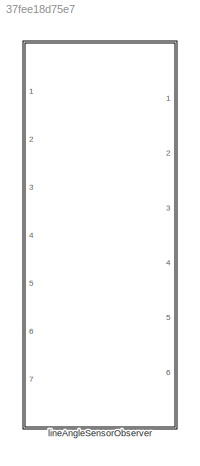
MODEL slx_37fee18d75e7
KIND library
CONFIG AbsTol = auto
CONFIG EnableMultiTasking = off
CONFIG FixedStep = auto
CONFIG MaxStep = auto
CONFIG MinStep = auto
CONFIG RelTol = 1e-3
CONFIG SampleTimeConstraint = Unconstrained
CONFIG SolverName = VariableStepAuto
CONFIG StartTime = 0.0
CONFIG StopTime = 10.0
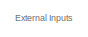
[diagram: lineAngleSensorObserver - part 1/5, top center region]
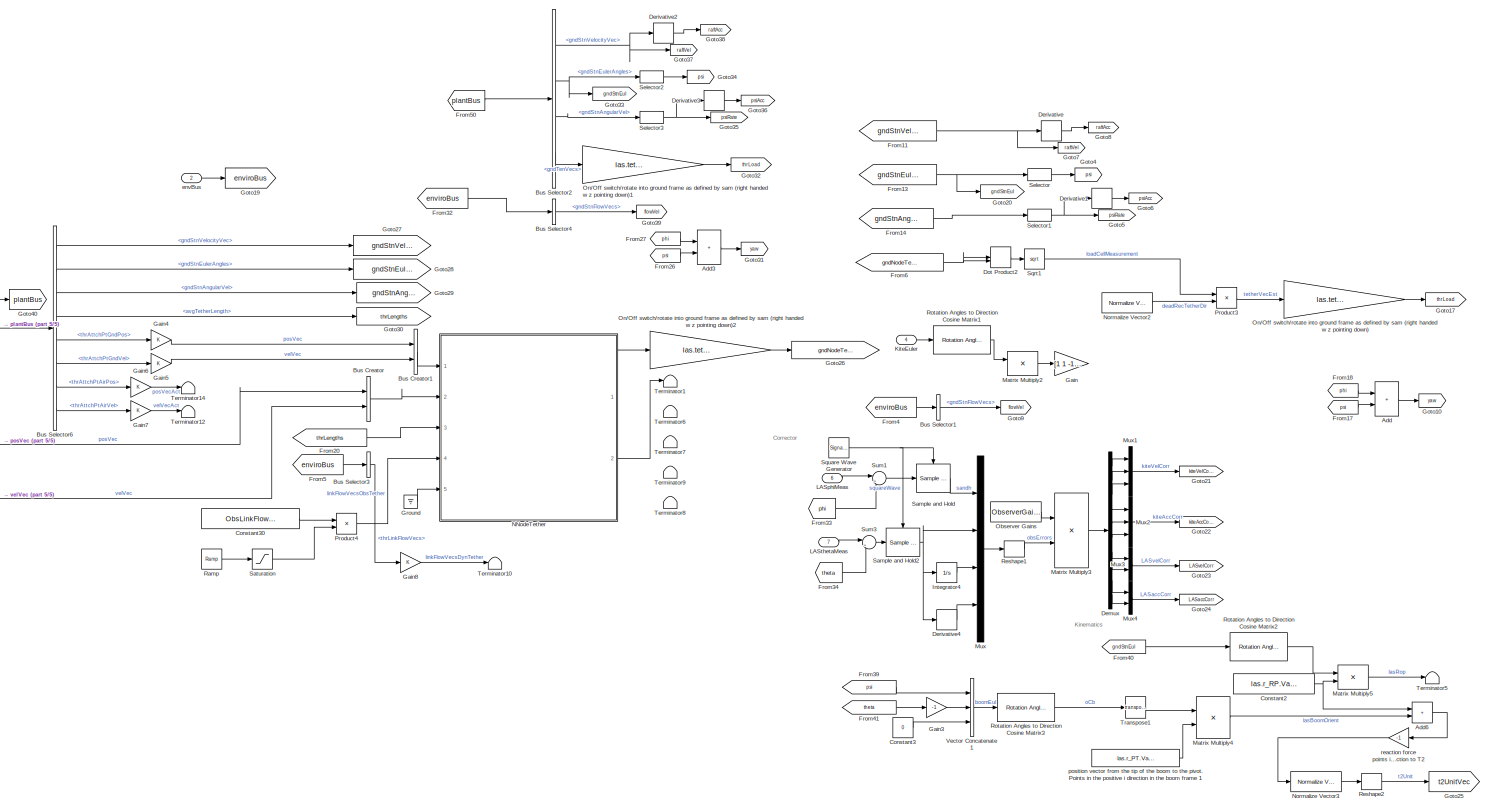
[diagram: lineAngleSensorObserver - part 2/5, center side, full height]
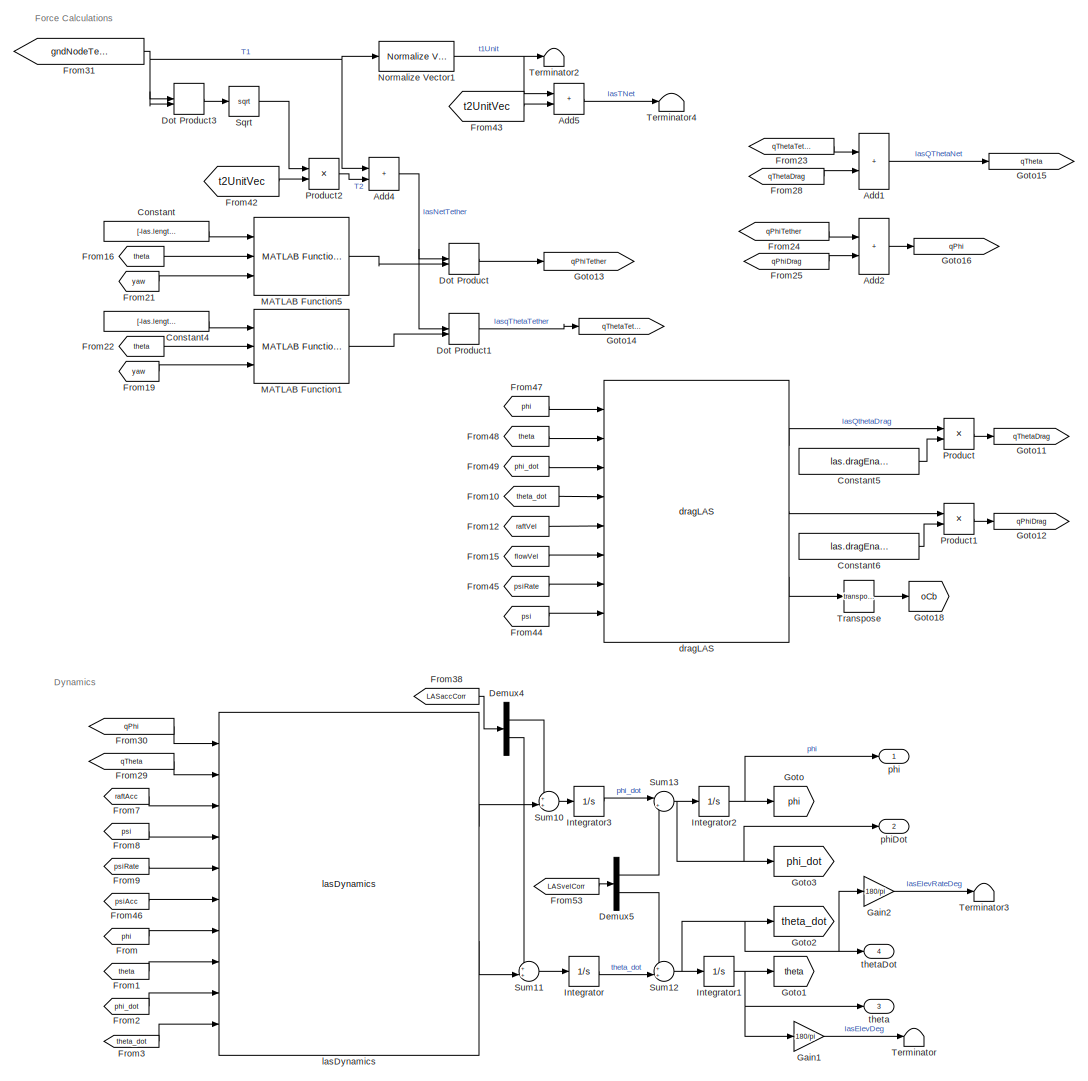
[diagram: lineAngleSensorObserver - part 3/5, right side, full height]
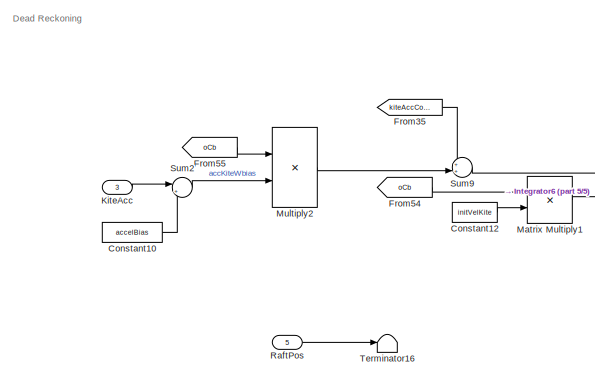
[diagram: lineAngleSensorObserver - part 4/5, middle left region]
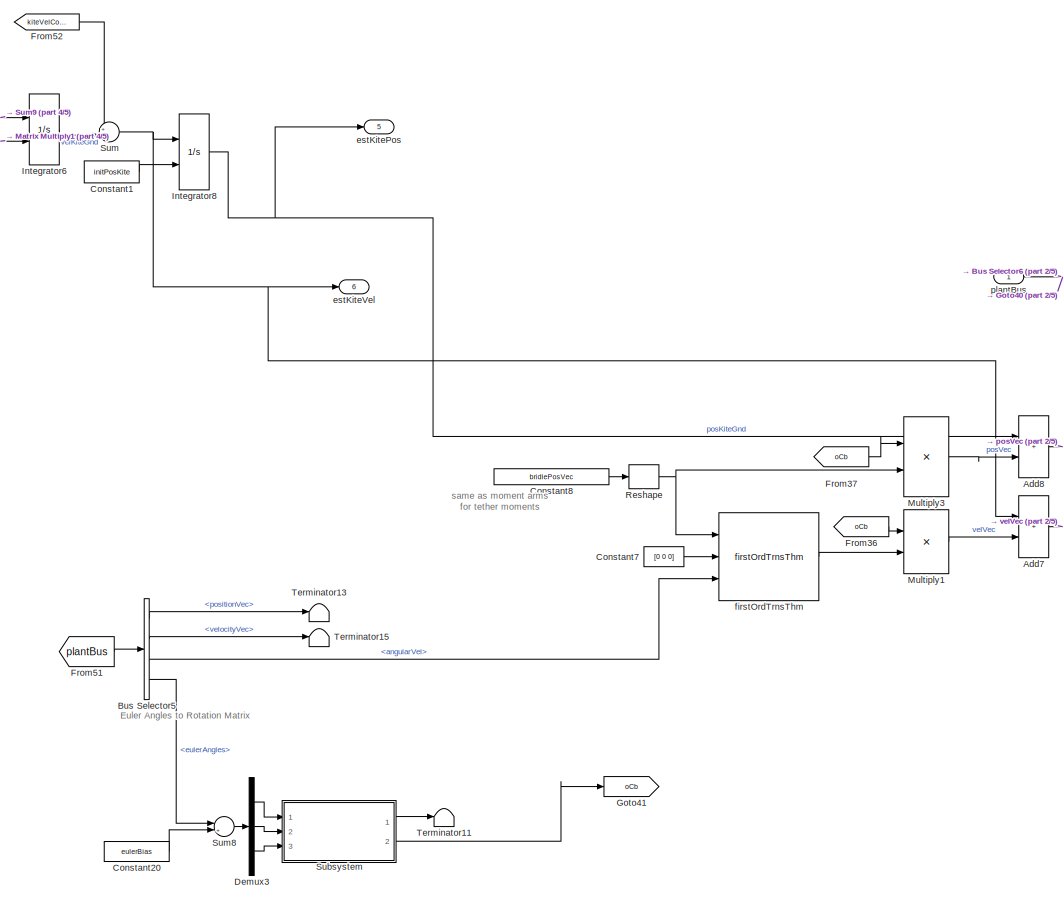
[diagram: lineAngleSensorObserver - part 5/5, middle left region]
BLOCK [SubSystem] lineAngleSensorObserver
  Ports = [7, 6]
  RequestExecContextInheritance = off
BLOCK [Sum] lineAngleSensorObserver/Add
  Commented = on
  IconShape = rectangular
  Ports = [2, 1]
BLOCK [Sum] lineAngleSensorObserver/Add1
  IconShape = rectangular
  Ports = [2, 1]
BLOCK [Sum] lineAngleSensorObserver/Add2
  IconShape = rectangular
  Ports = [2, 1]
BLOCK [Sum] lineAngleSensorObserver/Add3
  IconShape = rectangular
  Ports = [2, 1]
BLOCK [Sum] lineAngleSensorObserver/Add4
  IconShape = rectangular
  Ports = [2, 1]
BLOCK [Sum] lineAngleSensorObserver/Add5
  IconShape = rectangular
  Ports = [2, 1]
BLOCK [Sum] lineAngleSensorObserver/Add6
  IconShape = rectangular
  Ports = [2, 1]
BLOCK [Sum] lineAngleSensorObserver/Add7
  IconShape = rectangular
  Ports = [2, 1]
BLOCK [Sum] lineAngleSensorObserver/Add8
  IconShape = rectangular
  Ports = [2, 1]
BLOCK [BusCreator] lineAngleSensorObserver/Bus Creator
  DisplayOption = bar
  InheritFromInputs = on
  Inputs = 2
  NonVirtualBus = on
  OutDataTypeStr = Bus: thrAttachPtKinematicsBus
  Ports = [2, 1]
BLOCK [BusCreator] lineAngleSensorObserver/Bus Creator1
  DisplayOption = bar
  InheritFromInputs = on
  Inputs = 2
  NonVirtualBus = on
  OutDataTypeStr = Bus: thrAttachPtKinematicsBus
  Ports = [2, 1]
BLOCK [BusSelector] lineAngleSensorObserver/Bus Selector1
  Commented = on
  OutputSignals = gndStnFlowVecs
  Ports = [1, 1]
BLOCK [BusSelector] lineAngleSensorObserver/Bus Selector2
  OutputSignals = gndStnVelocityVec,gndStnEulerAngles,gndStnAngularVel,gndTenVecs
  Ports = [1, 4]
BLOCK [BusSelector] lineAngleSensorObserver/Bus Selector3
  OutputSignals = thrLinkFlowVecs
  Ports = [1, 1]
BLOCK [BusSelector] lineAngleSensorObserver/Bus Selector4
  OutputSignals = gndStnFlowVecs
  Ports = [1, 1]
BLOCK [BusSelector] lineAngleSensorObserver/Bus Selector5
  OutputSignals = positionVec,velocityVec,angularVel,eulerAngles
  Ports = [1, 4]
BLOCK [BusSelector] lineAngleSensorObserver/Bus Selector6
  OutputSignals = gndStnVelocityVec,gndStnEulerAngles,gndStnAngularVel,avgTetherLength,thrAttchPtGndPos,thrAttchPtGndVel,thrAttchPtAirPos,thrAttchPtAirVel
  Ports = [1, 8]
BLOCK [Constant] lineAngleSensorObserver/Constant
  Value = [-las.length.Value 0 0]
BLOCK [Constant] lineAngleSensorObserver/Constant1
  Value = initPosKite
BLOCK [Constant] lineAngleSensorObserver/Constant10
  Value = accelBias
BLOCK [Constant] lineAngleSensorObserver/Constant12
  Value = initVelKite
BLOCK [Constant] lineAngleSensorObserver/Constant2
  Value = las.r_RP.Value
BLOCK [Constant] lineAngleSensorObserver/Constant20
  Value = eulerBias
BLOCK [Constant] lineAngleSensorObserver/Constant3
  Value = 0
BLOCK [Constant] lineAngleSensorObserver/Constant30
  Value = ObsLinkFlowVecsConstant
BLOCK [Constant] lineAngleSensorObserver/Constant4
  Value = [-las.length.Value 0 0]
BLOCK [Constant] lineAngleSensorObserver/Constant5
  Value = las.dragEnable.Value
BLOCK [Constant] lineAngleSensorObserver/Constant6
  Value = las.dragEnable.Value
BLOCK [Constant] lineAngleSensorObserver/Constant7
  Value = [0 0 0]
BLOCK [Constant] lineAngleSensorObserver/Constant8
  Value = bridlePosVec
BLOCK [Demux] lineAngleSensorObserver/Demux
  Outputs = 10
  Ports = [1, 10]
BLOCK [Demux] lineAngleSensorObserver/Demux3
  Outputs = 3
  Ports = [1, 3]
BLOCK [Demux] lineAngleSensorObserver/Demux4
  Outputs = 2
  Ports = [1, 2]
BLOCK [Demux] lineAngleSensorObserver/Demux5
  Outputs = 2
  Ports = [1, 2]
BLOCK [Derivative] lineAngleSensorObserver/Derivative
  Commented = on
BLOCK [Derivative] lineAngleSensorObserver/Derivative1
  Commented = on
BLOCK [Derivative] lineAngleSensorObserver/Derivative2
BLOCK [Derivative] lineAngleSensorObserver/Derivative3
BLOCK [Derivative] lineAngleSensorObserver/Derivative4
BLOCK [DotProduct] lineAngleSensorObserver/Dot Product
  OutDataTypeStr = Inherit: Inherit via internal rule
BLOCK [DotProduct] lineAngleSensorObserver/Dot Product1
  OutDataTypeStr = Inherit: Inherit via internal rule
BLOCK [DotProduct] lineAngleSensorObserver/Dot Product2
  Commented = on
  OutDataTypeStr = Inherit: Inherit via internal rule
BLOCK [DotProduct] lineAngleSensorObserver/Dot Product3
  OutDataTypeStr = Inherit: Inherit via internal rule
BLOCK [From] lineAngleSensorObserver/From
  GotoTag = phi
BLOCK [From] lineAngleSensorObserver/From1
  GotoTag = theta
BLOCK [From] lineAngleSensorObserver/From10
  GotoTag = theta_dot
BLOCK [From] lineAngleSensorObserver/From11
  Commented = on
  GotoTag = gndStnVelocityVec
BLOCK [From] lineAngleSensorObserver/From12
  GotoTag = raftVel
BLOCK [From] lineAngleSensorObserver/From13
  Commented = on
  GotoTag = gndStnEulerAngles
BLOCK [From] lineAngleSensorObserver/From14
  Commented = on
  GotoTag = gndStnAngularVel
BLOCK [From] lineAngleSensorObserver/From15
  GotoTag = flowVel
BLOCK [From] lineAngleSensorObserver/From16
  GotoTag = theta
BLOCK [From] lineAngleSensorObserver/From17
  Commented = on
  GotoTag = psi
BLOCK [From] lineAngleSensorObserver/From18
  Commented = on
  GotoTag = phi
BLOCK [From] lineAngleSensorObserver/From19
  GotoTag = yaw
BLOCK [From] lineAngleSensorObserver/From2
  GotoTag = phi_dot
BLOCK [From] lineAngleSensorObserver/From20
  GotoTag = thrLengths
BLOCK [From] lineAngleSensorObserver/From21
  GotoTag = yaw
BLOCK [From] lineAngleSensorObserver/From22
  GotoTag = theta
BLOCK [From] lineAngleSensorObserver/From23
  GotoTag = qThetaTether
BLOCK [From] lineAngleSensorObserver/From24
  GotoTag = qPhiTether
BLOCK [From] lineAngleSensorObserver/From25
  GotoTag = qPhiDrag
BLOCK [From] lineAngleSensorObserver/From26
  GotoTag = psi
BLOCK [From] lineAngleSensorObserver/From27
  GotoTag = phi
BLOCK [From] lineAngleSensorObserver/From28
  GotoTag = qThetaDrag
BLOCK [From] lineAngleSensorObserver/From29
  GotoTag = qTheta
BLOCK [From] lineAngleSensorObserver/From3
  GotoTag = theta_dot
BLOCK [From] lineAngleSensorObserver/From30
  GotoTag = qPhi
BLOCK [From] lineAngleSensorObserver/From31
  GotoTag = gndNodeTenVecs
BLOCK [From] lineAngleSensorObserver/From32
  GotoTag = enviroBus
BLOCK [From] lineAngleSensorObserver/From33
  GotoTag = phi
BLOCK [From] lineAngleSensorObserver/From34
  GotoTag = theta
BLOCK [From] lineAngleSensorObserver/From35
  GotoTag = kiteAccCorr
BLOCK [From] lineAngleSensorObserver/From36
  GotoTag = oCb
BLOCK [From] lineAngleSensorObserver/From37
  GotoTag = oCb
BLOCK [From] lineAngleSensorObserver/From38
  GotoTag = LASaccCorr
BLOCK [From] lineAngleSensorObserver/From39
  GotoTag = psi
BLOCK [From] lineAngleSensorObserver/From4
  Commented = on
  GotoTag = enviroBus
BLOCK [From] lineAngleSensorObserver/From40
  GotoTag = gndStnEul
BLOCK [From] lineAngleSensorObserver/From41
  GotoTag = theta
BLOCK [From] lineAngleSensorObserver/From42
  GotoTag = t2UnitVec
BLOCK [From] lineAngleSensorObserver/From43
  GotoTag = t2UnitVec
BLOCK [From] lineAngleSensorObserver/From44
  GotoTag = psi
BLOCK [From] lineAngleSensorObserver/From45
  GotoTag = psiRate
BLOCK [From] lineAngleSensorObserver/From46
  GotoTag = psiAcc
BLOCK [From] lineAngleSensorObserver/From47
  GotoTag = phi
BLOCK [From] lineAngleSensorObserver/From48
  GotoTag = theta
BLOCK [From] lineAngleSensorObserver/From49
  GotoTag = phi_dot
BLOCK [From] lineAngleSensorObserver/From5
  GotoTag = enviroBus
BLOCK [From] lineAngleSensorObserver/From50
  GotoTag = plantBus
BLOCK [From] lineAngleSensorObserver/From51
  GotoTag = plantBus
BLOCK [From] lineAngleSensorObserver/From52
  GotoTag = kiteVelCorr
BLOCK [From] lineAngleSensorObserver/From53
  GotoTag = LASvelCorr
BLOCK [From] lineAngleSensorObserver/From54
  GotoTag = oCb
BLOCK [From] lineAngleSensorObserver/From55
  GotoTag = oCb
BLOCK [From] lineAngleSensorObserver/From6
  Commented = on
  GotoTag = gndNodeTenVecs
BLOCK [From] lineAngleSensorObserver/From7
  GotoTag = raftAcc
BLOCK [From] lineAngleSensorObserver/From8
  GotoTag = psi
BLOCK [From] lineAngleSensorObserver/From9
  GotoTag = psiRate
BLOCK [Gain] lineAngleSensorObserver/Gain
  Commented = on
  Gain = [1 1 -1]'
BLOCK [Gain] lineAngleSensorObserver/Gain1
  Gain = 180/pi
BLOCK [Gain] lineAngleSensorObserver/Gain2
  Gain = 180/pi
BLOCK [Gain] lineAngleSensorObserver/Gain3
  Gain = -1
BLOCK [Gain] lineAngleSensorObserver/Gain4
BLOCK [Gain] lineAngleSensorObserver/Gain5
BLOCK [Gain] lineAngleSensorObserver/Gain6
BLOCK [Gain] lineAngleSensorObserver/Gain7
BLOCK [Gain] lineAngleSensorObserver/Gain8
BLOCK [Goto] lineAngleSensorObserver/Goto
  GotoTag = phi
BLOCK [Goto] lineAngleSensorObserver/Goto1
  GotoTag = theta
BLOCK [Goto] lineAngleSensorObserver/Goto10
  Commented = on
  GotoTag = yaw
BLOCK [Goto] lineAngleSensorObserver/Goto11
  GotoTag = qThetaDrag
BLOCK [Goto] lineAngleSensorObserver/Goto12
  GotoTag = qPhiDrag
BLOCK [Goto] lineAngleSensorObserver/Goto13
  GotoTag = qPhiTether
BLOCK [Goto] lineAngleSensorObserver/Goto14
  GotoTag = qThetaTether
BLOCK [Goto] lineAngleSensorObserver/Goto15
  GotoTag = qTheta
BLOCK [Goto] lineAngleSensorObserver/Goto16
  GotoTag = qPhi
BLOCK [Goto] lineAngleSensorObserver/Goto17
  Commented = on
  GotoTag = thrLoad
BLOCK [Goto] lineAngleSensorObserver/Goto18
  GotoTag = oCb
BLOCK [Goto] lineAngleSensorObserver/Goto19
  GotoTag = enviroBus
BLOCK [Goto] lineAngleSensorObserver/Goto2
  GotoTag = theta_dot
BLOCK [Goto] lineAngleSensorObserver/Goto20
  Commented = on
  GotoTag = gndStnEul
BLOCK [Goto] lineAngleSensorObserver/Goto21
  GotoTag = kiteVelCorr
BLOCK [Goto] lineAngleSensorObserver/Goto22
  GotoTag = kiteAccCorr
BLOCK [Goto] lineAngleSensorObserver/Goto23
  GotoTag = LASvelCorr
BLOCK [Goto] lineAngleSensorObserver/Goto24
  GotoTag = LASaccCorr
BLOCK [Goto] lineAngleSensorObserver/Goto25
  GotoTag = t2UnitVec
BLOCK [Goto] lineAngleSensorObserver/Goto26
  GotoTag = gndNodeTenVecs
BLOCK [Goto] lineAngleSensorObserver/Goto27
  GotoTag = gndStnVelocityVec
BLOCK [Goto] lineAngleSensorObserver/Goto28
  GotoTag = gndStnEulerAngles
BLOCK [Goto] lineAngleSensorObserver/Goto29
  GotoTag = gndStnAngularVel
BLOCK [Goto] lineAngleSensorObserver/Goto3
  GotoTag = phi_dot
BLOCK [Goto] lineAngleSensorObserver/Goto30
  GotoTag = thrLengths
BLOCK [Goto] lineAngleSensorObserver/Goto31
  GotoTag = yaw
BLOCK [Goto] lineAngleSensorObserver/Goto32
  GotoTag = thrLoad
BLOCK [Goto] lineAngleSensorObserver/Goto33
  GotoTag = gndStnEul
BLOCK [Goto] lineAngleSensorObserver/Goto34
  GotoTag = psi
BLOCK [Goto] lineAngleSensorObserver/Goto35
  GotoTag = psiRate
BLOCK [Goto] lineAngleSensorObserver/Goto36
  GotoTag = psiAcc
BLOCK [Goto] lineAngleSensorObserver/Goto37
  GotoTag = raftVel
BLOCK [Goto] lineAngleSensorObserver/Goto38
  GotoTag = raftAcc
BLOCK [Goto] lineAngleSensorObserver/Goto39
  GotoTag = flowVel
BLOCK [Goto] lineAngleSensorObserver/Goto4
  Commented = on
  GotoTag = psi
BLOCK [Goto] lineAngleSensorObserver/Goto40
  GotoTag = plantBus
BLOCK [Goto] lineAngleSensorObserver/Goto41
  GotoTag = oCb
BLOCK [Goto] lineAngleSensorObserver/Goto5
  Commented = on
  GotoTag = psiRate
BLOCK [Goto] lineAngleSensorObserver/Goto6
  Commented = on
  GotoTag = psiAcc
BLOCK [Goto] lineAngleSensorObserver/Goto7
  Commented = on
  GotoTag = raftVel
BLOCK [Goto] lineAngleSensorObserver/Goto8
  Commented = on
  GotoTag = raftAcc
BLOCK [Goto] lineAngleSensorObserver/Goto9
  Commented = on
  GotoTag = flowVel
BLOCK [Ground] lineAngleSensorObserver/Ground
BLOCK [Integrator] lineAngleSensorObserver/Integrator
  InitialCondition = obsLASthetadotInit
  Ports = [1, 1]
BLOCK [Integrator] lineAngleSensorObserver/Integrator1
  InitialCondition = obsLASthetaInit
  Ports = [1, 1]
BLOCK [Integrator] lineAngleSensorObserver/Integrator2
  InitialCondition = obsLASphiInit
  Ports = [1, 1]
BLOCK [Integrator] lineAngleSensorObserver/Integrator3
  InitialCondition = obsLASphidotInit
  Ports = [1, 1]
BLOCK [Integrator] lineAngleSensorObserver/Integrator4
  Ports = [1, 1]
BLOCK [Integrator] lineAngleSensorObserver/Integrator6
  InitialConditionSource = external
  Ports = [2, 1]
BLOCK [Integrator] lineAngleSensorObserver/Integrator8
  InitialConditionSource = external
  Ports = [2, 1]
BLOCK [Inport] lineAngleSensorObserver/KiteAcc
  Port = 3
BLOCK [Inport] lineAngleSensorObserver/KiteEuler
  Port = 4
BLOCK [Inport] lineAngleSensorObserver/LASphiMeas
  Port = 6
BLOCK [Inport] lineAngleSensorObserver/LASthetaMeas
  Port = 7
BLOCK [Reference] lineAngleSensorObserver/MATLAB Function1  REF=lineAngleSensor/lineAngleSensor/MATLAB Function1
  Ports = [3, 1]
  SourceBlock = lineAngleSensor/lineAngleSensor/MATLAB Function1
  SourceType = SubSystem
BLOCK [Reference] lineAngleSensorObserver/MATLAB Function5  REF=lineAngleSensor/lineAngleSensor/MATLAB Function5
  Ports = [3, 1]
  SourceBlock = lineAngleSensor/lineAngleSensor/MATLAB Function5
  SourceType = SubSystem
BLOCK [Product] lineAngleSensorObserver/Matrix Multiply1
  Multiplication = Matrix(*)
  Ports = [2, 1]
BLOCK [Product] lineAngleSensorObserver/Matrix Multiply2
  Commented = on
  Multiplication = Matrix(*)
  Ports = [2, 1]
BLOCK [Product] lineAngleSensorObserver/Matrix Multiply3
  Multiplication = Matrix(*)
  Ports = [2, 1]
BLOCK [Product] lineAngleSensorObserver/Matrix Multiply4
  Multiplication = Matrix(*)
  Ports = [2, 1]
BLOCK [Product] lineAngleSensorObserver/Matrix Multiply5
  Multiplication = Matrix(*)
  Ports = [2, 1]
BLOCK [Product] lineAngleSensorObserver/Multiply1
  Multiplication = Matrix(*)
  Ports = [2, 1]
BLOCK [Product] lineAngleSensorObserver/Multiply2
  Multiplication = Matrix(*)
  Ports = [2, 1]
BLOCK [Product] lineAngleSensorObserver/Multiply3
  Multiplication = Matrix(*)
  Ports = [2, 1]
BLOCK [Mux] lineAngleSensorObserver/Mux
  DisplayOption = bar
  Ports = [4, 1]
BLOCK [Mux] lineAngleSensorObserver/Mux1
  DisplayOption = bar
  Inputs = 3
  Ports = [3, 1]
BLOCK [Mux] lineAngleSensorObserver/Mux2
  DisplayOption = bar
  Inputs = 3
  Ports = [3, 1]
BLOCK [Mux] lineAngleSensorObserver/Mux3
  DisplayOption = bar
  Inputs = 2
  Ports = [2, 1]
BLOCK [Mux] lineAngleSensorObserver/Mux4
  DisplayOption = bar
  Inputs = 2
  Ports = [2, 1]
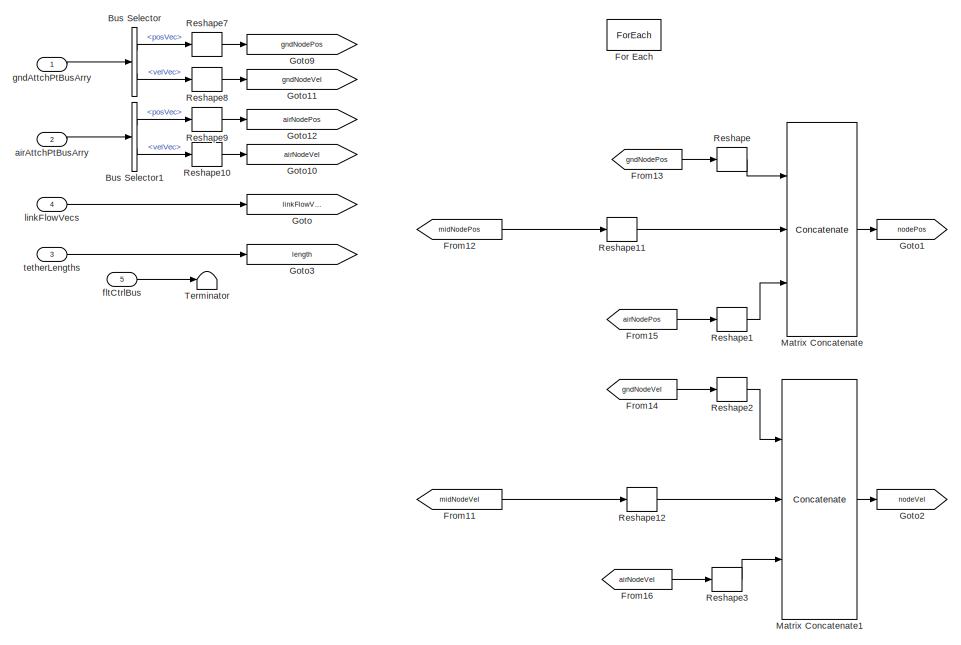
[diagram: lineAngleSensorObserver/NNodeTether - part 1/2, left side, full height]
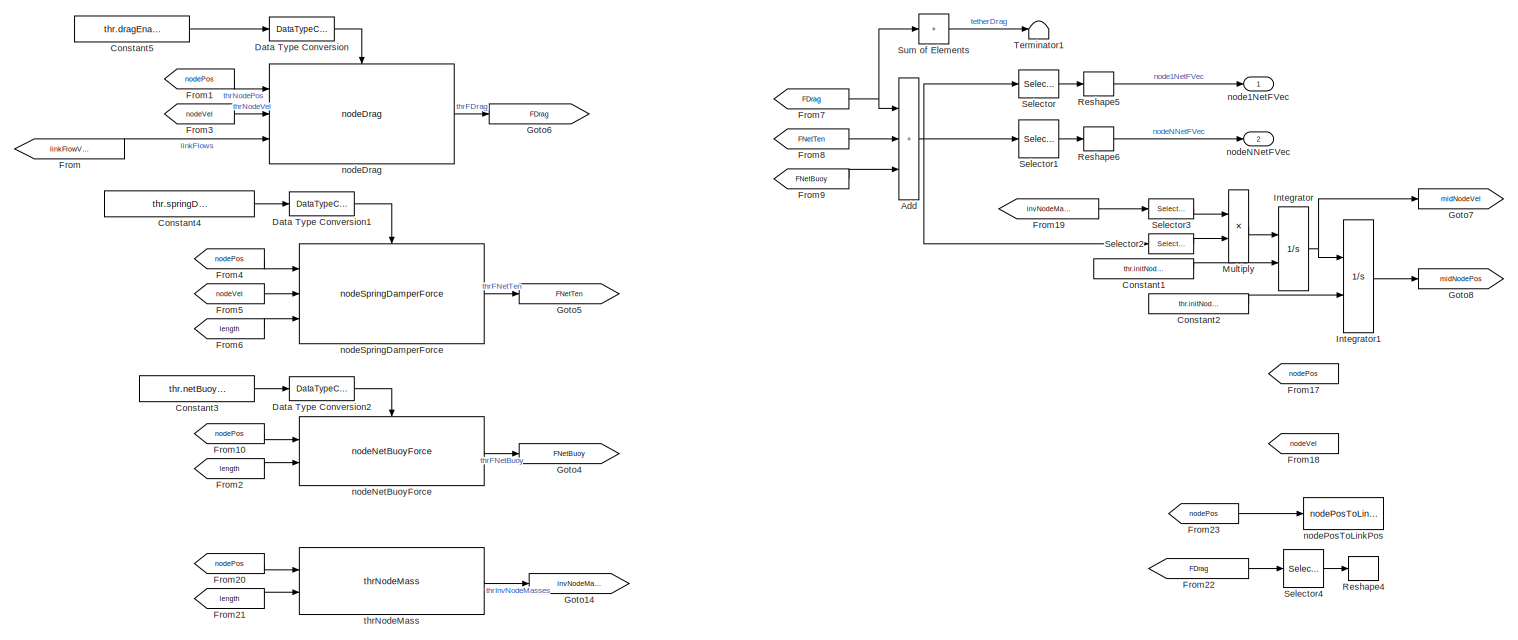
[diagram: lineAngleSensorObserver/NNodeTether - part 2/2, right side, full height]
BLOCK [SubSystem] lineAngleSensorObserver/NNodeTether
  AncestorBlock = NNodeTether_cl/NNodeTether
  Ports = [5, 2]
  RequestExecContextInheritance = off
  VariantControl = NNodeTether
BLOCK [Sum] lineAngleSensorObserver/NNodeTether/Add
  IconShape = rectangular
  Inputs = 3
  Ports = [3, 1]
BLOCK [BusSelector] lineAngleSensorObserver/NNodeTether/Bus Selector
  OutputSignals = posVec,velVec
  Ports = [1, 2]
BLOCK [BusSelector] lineAngleSensorObserver/NNodeTether/Bus Selector1
  OutputSignals = posVec,velVec
  Ports = [1, 2]
BLOCK [Constant] lineAngleSensorObserver/NNodeTether/Constant1
  Value = thr.initNodeVel
BLOCK [Constant] lineAngleSensorObserver/NNodeTether/Constant2
  Value = thr.initNodePos
BLOCK [Constant] lineAngleSensorObserver/NNodeTether/Constant3
  Value = thr.netBuoyEnable
BLOCK [Constant] lineAngleSensorObserver/NNodeTether/Constant4
  Value = thr.springDamperEnable
BLOCK [Constant] lineAngleSensorObserver/NNodeTether/Constant5
  Value = thr.dragEnable
BLOCK [DataTypeConversion] lineAngleSensorObserver/NNodeTether/Data Type Conversion
  OutDataTypeStr = boolean
  RndMeth = Floor
  SaturateOnIntegerOverflow = off
BLOCK [DataTypeConversion] lineAngleSensorObserver/NNodeTether/Data Type Conversion1
  OutDataTypeStr = boolean
  RndMeth = Floor
  SaturateOnIntegerOverflow = off
BLOCK [DataTypeConversion] lineAngleSensorObserver/NNodeTether/Data Type Conversion2
  OutDataTypeStr = boolean
  RndMeth = Floor
  SaturateOnIntegerOverflow = off
BLOCK [ForEach] lineAngleSensorObserver/NNodeTether/For Each
  DisableCoverage = on
  IterateSubsysMaskParameter = off,off,off,off
  Ports = []
  SubsysMaskParameterIterationDimension = 1,1,1,1
  SubsysMaskParameterIterationStepSize = 1,1,1,1
BLOCK [From] lineAngleSensorObserver/NNodeTether/From
  GotoTag = linkFlowVelVecs
BLOCK [From] lineAngleSensorObserver/NNodeTether/From1
  GotoTag = nodePos
BLOCK [From] lineAngleSensorObserver/NNodeTether/From10
  GotoTag = nodePos
BLOCK [From] lineAngleSensorObserver/NNodeTether/From11
  GotoTag = midNodeVel
BLOCK [From] lineAngleSensorObserver/NNodeTether/From12
  GotoTag = midNodePos
BLOCK [From] lineAngleSensorObserver/NNodeTether/From13
  GotoTag = gndNodePos
BLOCK [From] lineAngleSensorObserver/NNodeTether/From14
  GotoTag = gndNodeVel
BLOCK [From] lineAngleSensorObserver/NNodeTether/From15
  GotoTag = airNodePos
BLOCK [From] lineAngleSensorObserver/NNodeTether/From16
  GotoTag = airNodeVel
BLOCK [From] lineAngleSensorObserver/NNodeTether/From17
  Commented = on
  GotoTag = nodePos
BLOCK [From] lineAngleSensorObserver/NNodeTether/From18
  Commented = on
  GotoTag = nodeVel
BLOCK [From] lineAngleSensorObserver/NNodeTether/From19
  GotoTag = invNodeMasses
BLOCK [From] lineAngleSensorObserver/NNodeTether/From2
  GotoTag = length
BLOCK [From] lineAngleSensorObserver/NNodeTether/From20
  GotoTag = nodePos
BLOCK [From] lineAngleSensorObserver/NNodeTether/From21
  GotoTag = length
BLOCK [From] lineAngleSensorObserver/NNodeTether/From22
  Commented = on
  GotoTag = FDrag
BLOCK [From] lineAngleSensorObserver/NNodeTether/From23
  Commented = on
  GotoTag = nodePos
BLOCK [From] lineAngleSensorObserver/NNodeTether/From3
  GotoTag = nodeVel
BLOCK [From] lineAngleSensorObserver/NNodeTether/From4
  GotoTag = nodePos
BLOCK [From] lineAngleSensorObserver/NNodeTether/From5
  GotoTag = nodeVel
BLOCK [From] lineAngleSensorObserver/NNodeTether/From6
  GotoTag = length
BLOCK [From] lineAngleSensorObserver/NNodeTether/From7
  GotoTag = FDrag
BLOCK [From] lineAngleSensorObserver/NNodeTether/From8
  GotoTag = FNetTen
BLOCK [From] lineAngleSensorObserver/NNodeTether/From9
  GotoTag = FNetBuoy
BLOCK [Goto] lineAngleSensorObserver/NNodeTether/Goto
  GotoTag = linkFlowVelVecs
BLOCK [Goto] lineAngleSensorObserver/NNodeTether/Goto1
  GotoTag = nodePos
BLOCK [Goto] lineAngleSensorObserver/NNodeTether/Goto10
  GotoTag = airNodeVel
BLOCK [Goto] lineAngleSensorObserver/NNodeTether/Goto11
  GotoTag = gndNodeVel
BLOCK [Goto] lineAngleSensorObserver/NNodeTether/Goto12
  GotoTag = airNodePos
BLOCK [Goto] lineAngleSensorObserver/NNodeTether/Goto14
  GotoTag = invNodeMasses
BLOCK [Goto] lineAngleSensorObserver/NNodeTether/Goto2
  GotoTag = nodeVel
BLOCK [Goto] lineAngleSensorObserver/NNodeTether/Goto3
  GotoTag = length
BLOCK [Goto] lineAngleSensorObserver/NNodeTether/Goto4
  GotoTag = FNetBuoy
BLOCK [Goto] lineAngleSensorObserver/NNodeTether/Goto5
  GotoTag = FNetTen
BLOCK [Goto] lineAngleSensorObserver/NNodeTether/Goto6
  GotoTag = FDrag
BLOCK [Goto] lineAngleSensorObserver/NNodeTether/Goto7
  GotoTag = midNodeVel
BLOCK [Goto] lineAngleSensorObserver/NNodeTether/Goto8
  GotoTag = midNodePos
BLOCK [Goto] lineAngleSensorObserver/NNodeTether/Goto9
  GotoTag = gndNodePos
BLOCK [Integrator] lineAngleSensorObserver/NNodeTether/Integrator
  InitialConditionSource = external
  Ports = [2, 1]
BLOCK [Integrator] lineAngleSensorObserver/NNodeTether/Integrator1
  InitialConditionSource = external
  Ports = [2, 1]
BLOCK [Concatenate] lineAngleSensorObserver/NNodeTether/Matrix Concatenate
  ConcatenateDimension = 2
  Mode = Multidimensional array
  NumInputs = 3
  Ports = [3, 1]
BLOCK [Concatenate] lineAngleSensorObserver/NNodeTether/Matrix Concatenate1
  ConcatenateDimension = 2
  Mode = Multidimensional array
  NumInputs = 3
  Ports = [3, 1]
BLOCK [Product] lineAngleSensorObserver/NNodeTether/Multiply
  Ports = [2, 1]
BLOCK [Reshape] lineAngleSensorObserver/NNodeTether/Reshape
  OutputDimensionality = Column vector (2-D)
  Ports = [1, 1]
BLOCK [Reshape] lineAngleSensorObserver/NNodeTether/Reshape1
  OutputDimensionality = Column vector (2-D)
  Ports = [1, 1]
BLOCK [Reshape] lineAngleSensorObserver/NNodeTether/Reshape10
  OutputDimensionality = Column vector (2-D)
  Ports = [1, 1]
BLOCK [Reshape] lineAngleSensorObserver/NNodeTether/Reshape11
  Commented = through
  OutputDimensionality = Column vector (2-D)
  Ports = [1, 1]
BLOCK [Reshape] lineAngleSensorObserver/NNodeTether/Reshape12
  Commented = through
  OutputDimensionality = Column vector (2-D)
  Ports = [1, 1]
BLOCK [Reshape] lineAngleSensorObserver/NNodeTether/Reshape2
  OutputDimensionality = Column vector (2-D)
  Ports = [1, 1]
BLOCK [Reshape] lineAngleSensorObserver/NNodeTether/Reshape3
  OutputDimensionality = Column vector (2-D)
  Ports = [1, 1]
BLOCK [Reshape] lineAngleSensorObserver/NNodeTether/Reshape4
  Commented = on
  OutputDimensionality = Column vector (2-D)
  Ports = [1, 1]
BLOCK [Reshape] lineAngleSensorObserver/NNodeTether/Reshape5
  OutputDimensionality = Column vector (2-D)
  Ports = [1, 1]
BLOCK [Reshape] lineAngleSensorObserver/NNodeTether/Reshape6
  OutputDimensionality = Column vector (2-D)
  Ports = [1, 1]
BLOCK [Reshape] lineAngleSensorObserver/NNodeTether/Reshape7
  OutputDimensionality = Column vector (2-D)
  Ports = [1, 1]
BLOCK [Reshape] lineAngleSensorObserver/NNodeTether/Reshape8
  OutputDimensionality = Column vector (2-D)
  Ports = [1, 1]
BLOCK [Reshape] lineAngleSensorObserver/NNodeTether/Reshape9
  OutputDimensionality = Column vector (2-D)
  Ports = [1, 1]
BLOCK [Selector] lineAngleSensorObserver/NNodeTether/Selector
  IndexOptions = Select all,Index vector (dialog)
  Indices = [1 3],1
  InputPortWidth = 3
  NumberOfDimensions = 2
  OutputSizes = 1,1
  Ports = [1, 1]
BLOCK [Selector] lineAngleSensorObserver/NNodeTether/Selector1
  IndexOptions = Select all,Starting index (dialog)
  Indices = [1 3],numNodes
  InputPortWidth = 3
  NumberOfDimensions = 2
  OutputSizes = 1,1
  Ports = [1, 1]
BLOCK [Selector] lineAngleSensorObserver/NNodeTether/Selector2
  IndexOptions = Select all,Index vector (dialog)
  Indices = [1 3],2:numNodes-1
  InputPortWidth = 3
  NumberOfDimensions = 2
  OutputSizes = 1,1
  Ports = [1, 1]
BLOCK [Selector] lineAngleSensorObserver/NNodeTether/Selector3
  IndexOptions = Select all,Index vector (dialog)
  Indices = [1 3],2:numNodes-1
  InputPortWidth = 3
  NumberOfDimensions = 2
  OutputSizes = 1,1
  Ports = [1, 1]
BLOCK [Selector] lineAngleSensorObserver/NNodeTether/Selector4
  Commented = on
  IndexOptions = Select all,Starting index (dialog)
  Indices = [1 3],numNodes
  InputPortWidth = 3
  NumberOfDimensions = 2
  OutputSizes = 1,1
  Ports = [1, 1]
BLOCK [Sum] lineAngleSensorObserver/NNodeTether/Sum of Elements
  CollapseDim = 2
  CollapseMode = Specified dimension
  IconShape = rectangular
  Inputs = +
  Ports = [1, 1]
BLOCK [Terminator] lineAngleSensorObserver/NNodeTether/Terminator
BLOCK [Terminator] lineAngleSensorObserver/NNodeTether/Terminator1
BLOCK [Inport] lineAngleSensorObserver/NNodeTether/airAttchPtBusArry
  OutDataTypeStr = Bus: thrAttachPtKinematicsBus
  Partition = on
  PartitionDimension = 1
  PartitionOffset = 0
  PartitionWidth = 1
  Port = 2
BLOCK [Inport] lineAngleSensorObserver/NNodeTether/fltCtrlBus
  Port = 5
BLOCK [Inport] lineAngleSensorObserver/NNodeTether/gndAttchPtBusArry
  OutDataTypeStr = Bus: thrAttachPtKinematicsBus
  Partition = on
  PartitionDimension = 1
  PartitionOffset = 0
  PartitionWidth = 1
BLOCK [Inport] lineAngleSensorObserver/NNodeTether/linkFlowVecs
  Partition = on
  PartitionDimension = 3
  PartitionOffset = 0
  PartitionWidth = 1
  Port = 4
BLOCK [Outport] lineAngleSensorObserver/NNodeTether/node1NetFVec
  ConcatenationDimension = 3
  VectorParamsAs1DForOutWhenUnconnected = off
BLOCK [Reference] lineAngleSensorObserver/NNodeTether/nodeDrag  REF=nodeDragForce_ul/nodeDrag
  Ports = [3, 1, 1]
  SourceBlock = nodeDragForce_ul/nodeDrag
BLOCK [Outport] lineAngleSensorObserver/NNodeTether/nodeNNetFVec
  ConcatenationDimension = 3
  Port = 2
  VectorParamsAs1DForOutWhenUnconnected = off
BLOCK [Reference] lineAngleSensorObserver/NNodeTether/nodeNetBuoyForce  REF=nodeNetBuoyForce_ul/nodeNetBuoyForce
  Ports = [2, 1, 1]
  SourceBlock = nodeNetBuoyForce_ul/nodeNetBuoyForce
BLOCK [Reference] lineAngleSensorObserver/NNodeTether/nodePosToLinkPos  REF=nodePosToLinkPos_ul/nodePosToLinkPos
  Commented = on
  Ports = [1, 1]
  SourceBlock = nodePosToLinkPos_ul/nodePosToLinkPos
  SourceType = SubSystem
BLOCK [Reference] lineAngleSensorObserver/NNodeTether/nodeSpringDamperForce  REF=nodeSpringDamperForce_ul/nodeSpringDamperForce
  Ports = [3, 1, 1]
  SourceBlock = nodeSpringDamperForce_ul/nodeSpringDamperForce
BLOCK [Inport] lineAngleSensorObserver/NNodeTether/tetherLengths
  Partition = on
  PartitionDimension = 1
  PartitionOffset = 0
  PartitionWidth = 1
  Port = 3
BLOCK [Reference] lineAngleSensorObserver/NNodeTether/thrNodeMass  REF=thrNodeMass_ul/thrNodeMass
  Ports = [2, 1]
  SourceBlock = thrNodeMass_ul/thrNodeMass
BLOCK [Reference] lineAngleSensorObserver/Normalize Vector1  REF=vrlib/Utilities/Normalize Vector
  Ports = [1, 1]
  SourceBlock = vrlib/Utilities/Normalize Vector
  SourceProductBaseCode = SL
  SourceType = Normalize Vector
BLOCK [Reference] lineAngleSensorObserver/Normalize Vector2  REF=vrlib/Utilities/Normalize Vector
  Commented = on
  Ports = [1, 1]
  SourceBlock = vrlib/Utilities/Normalize Vector
  SourceProductBaseCode = SL
  SourceType = Normalize Vector
BLOCK [Reference] lineAngleSensorObserver/Normalize Vector3  REF=vrlib/Utilities/Normalize Vector
  Ports = [1, 1]
  SourceBlock = vrlib/Utilities/Normalize Vector
  SourceProductBaseCode = SL
  SourceType = Normalize Vector
BLOCK [Constant] lineAngleSensorObserver/Observer Gains
  Value = ObserverGains
BLOCK [Gain] lineAngleSensorObserver/On//Off switch//rotate into ground frame as defined by sam (right handed w z pointing down)
  Commented = on
  Gain = las.tetherEnable.Value*[1 -1 -1]'
BLOCK [Gain] lineAngleSensorObserver/On//Off switch//rotate into ground frame as defined by sam (right handed w z pointing down)1
  Gain = las.tetherEnable.Value*[1 -1 -1]'
BLOCK [Gain] lineAngleSensorObserver/On//Off switch//rotate into ground frame as defined by sam (right handed w z pointing down)2
  Gain = las.tetherEnable.Value*[1 -1 -1]'
BLOCK [Product] lineAngleSensorObserver/Product
  Ports = [2, 1]
BLOCK [Product] lineAngleSensorObserver/Product1
  Ports = [2, 1]
BLOCK [Product] lineAngleSensorObserver/Product2
  Ports = [2, 1]
BLOCK [Product] lineAngleSensorObserver/Product3
  Commented = on
  Ports = [2, 1]
BLOCK [Product] lineAngleSensorObserver/Product4
  Ports = [2, 1]
BLOCK [Inport] lineAngleSensorObserver/RaftPos
  Port = 5
BLOCK [Reference] lineAngleSensorObserver/Ramp  REF=simulink/Sources/Ramp
  Ports = [0, 1]
  SourceBlock = simulink/Sources/Ramp
  SourceProductBaseCode = SL
  SourceType = Ramp
BLOCK [Reshape] lineAngleSensorObserver/Reshape
  OutputDimensionality = Column vector (2-D)
  Ports = [1, 1]
BLOCK [Reshape] lineAngleSensorObserver/Reshape1
  OutputDimensionality = Column vector (2-D)
  Ports = [1, 1]
BLOCK [Reshape] lineAngleSensorObserver/Reshape2
  OutputDimensionality = Column vector (2-D)
  Ports = [1, 1]
BLOCK [Reference] lineAngleSensorObserver/Rotation Angles to Direction Cosine Matrix1  REF=sharedtransform/Rotation Angles to
Direction Cosine Matrix
  AttributesFormatString = Rotation Order: %<rotationOrder>
  Commented = on
  Ports = [1, 1]
  SourceBlock = sharedtransform/Rotation Angles to\nDirection Cosine Matrix
  SourceProductBaseCode = AE,PW,DR,MT,VE
  SourceType = Ang2DCM
BLOCK [Reference] lineAngleSensorObserver/Rotation Angles to Direction Cosine Matrix2  REF=sharedtransform/Rotation Angles to
Direction Cosine Matrix
  AttributesFormatString = Rotation Order: %<rotationOrder>
  Ports = [1, 1]
  SourceBlock = sharedtransform/Rotation Angles to\nDirection Cosine Matrix
  SourceProductBaseCode = AE,PW,DR,MT,VE
  SourceType = Ang2DCM
BLOCK [Reference] lineAngleSensorObserver/Rotation Angles to Direction Cosine Matrix3  REF=sharedtransform/Rotation Angles to
Direction Cosine Matrix
  AttributesFormatString = Rotation Order: %<rotationOrder>
  Ports = [1, 1]
  SourceBlock = sharedtransform/Rotation Angles to\nDirection Cosine Matrix
  SourceProductBaseCode = AE,PW,DR,MT,VE
  SourceType = Ang2DCM
BLOCK [Reference] lineAngleSensorObserver/Sample and Hold  REF=dspsigops/Sample
and Hold
  Ports = [1, 1, 0, 1]
  SourceBlock = dspsigops/Sample\nand Hold
  SourceProductBaseCode = DS
  SourceType = Sample and Hold
BLOCK [Reference] lineAngleSensorObserver/Sample and Hold2  REF=dspsigops/Sample
and Hold
  Ports = [1, 1, 0, 1]
  SourceBlock = dspsigops/Sample\nand Hold
  SourceProductBaseCode = DS
  SourceType = Sample and Hold
BLOCK [Saturate] lineAngleSensorObserver/Saturation
  LowerLimit = 0
  UpperLimit = 1
BLOCK [Selector] lineAngleSensorObserver/Selector
  Commented = on
  IndexOptions = Index vector (dialog)
  Indices = [3]
  InputPortWidth = 3
  OutputSizes = 1
  Ports = [1, 1]
BLOCK [Selector] lineAngleSensorObserver/Selector1
  Commented = on
  IndexOptions = Index vector (dialog)
  Indices = [3]
  InputPortWidth = 3
  OutputSizes = 1
  Ports = [1, 1]
BLOCK [Selector] lineAngleSensorObserver/Selector2
  IndexOptions = Index vector (dialog)
  Indices = [3]
  InputPortWidth = 3
  OutputSizes = 1
  Ports = [1, 1]
BLOCK [Selector] lineAngleSensorObserver/Selector3
  IndexOptions = Index vector (dialog)
  Indices = [3]
  InputPortWidth = 3
  OutputSizes = 1
  Ports = [1, 1]
BLOCK [Sqrt] lineAngleSensorObserver/Sqrt
BLOCK [Sqrt] lineAngleSensorObserver/Sqrt1
  Commented = on
BLOCK [SignalGenerator] lineAngleSensorObserver/Square Wave Generator
  Frequency = 100
  Ports = [0, 1]
  WaveForm = square
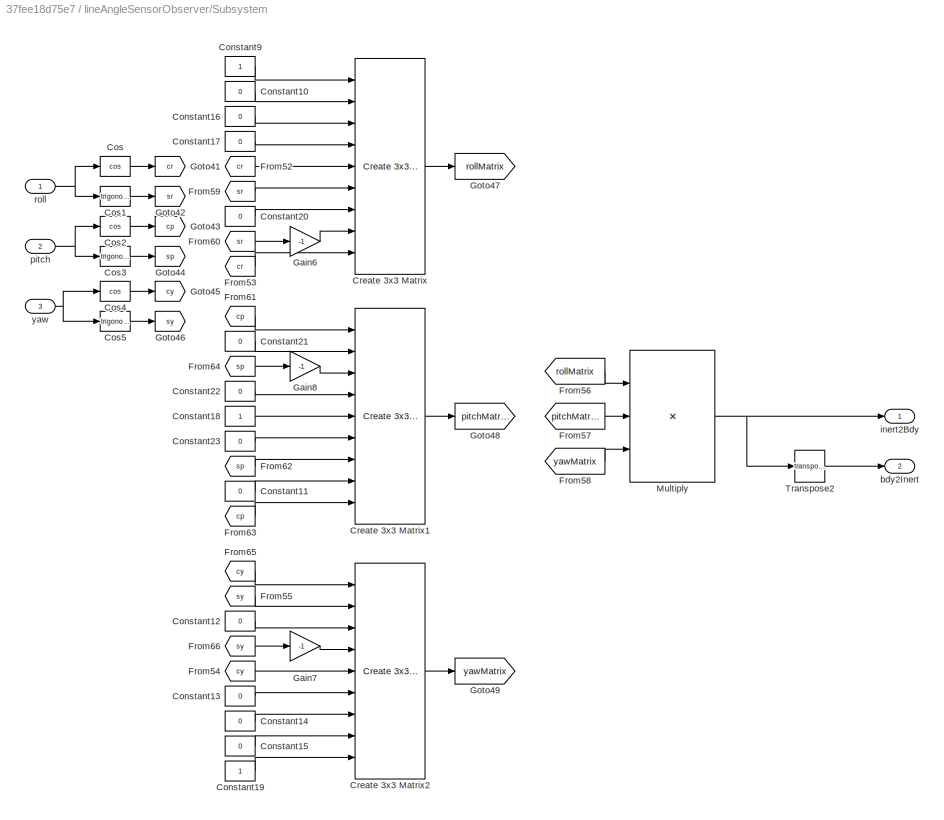
BLOCK [SubSystem] lineAngleSensorObserver/Subsystem
  Ports = [3, 2]
  RequestExecContextInheritance = off
BLOCK [Constant] lineAngleSensorObserver/Subsystem/Constant10
  Value = 0
BLOCK [Constant] lineAngleSensorObserver/Subsystem/Constant11
  Value = 0
BLOCK [Constant] lineAngleSensorObserver/Subsystem/Constant12
  Value = 0
BLOCK [Constant] lineAngleSensorObserver/Subsystem/Constant13
  Value = 0
BLOCK [Constant] lineAngleSensorObserver/Subsystem/Constant14
  Value = 0
BLOCK [Constant] lineAngleSensorObserver/Subsystem/Constant15
  Value = 0
BLOCK [Constant] lineAngleSensorObserver/Subsystem/Constant16
  Value = 0
BLOCK [Constant] lineAngleSensorObserver/Subsystem/Constant17
  Value = 0
BLOCK [Constant] lineAngleSensorObserver/Subsystem/Constant18
BLOCK [Constant] lineAngleSensorObserver/Subsystem/Constant19
BLOCK [Constant] lineAngleSensorObserver/Subsystem/Constant20
  Value = 0
BLOCK [Constant] lineAngleSensorObserver/Subsystem/Constant21
  Value = 0
BLOCK [Constant] lineAngleSensorObserver/Subsystem/Constant22
  Value = 0
BLOCK [Constant] lineAngleSensorObserver/Subsystem/Constant23
  Value = 0
BLOCK [Constant] lineAngleSensorObserver/Subsystem/Constant9
BLOCK [Trigonometry] lineAngleSensorObserver/Subsystem/Cos
  Operator = cos
  Ports = [1, 1]
BLOCK [Trigonometry] lineAngleSensorObserver/Subsystem/Cos1
  Ports = [1, 1]
BLOCK [Trigonometry] lineAngleSensorObserver/Subsystem/Cos2
  Operator = cos
  Ports = [1, 1]
BLOCK [Trigonometry] lineAngleSensorObserver/Subsystem/Cos3
  Ports = [1, 1]
BLOCK [Trigonometry] lineAngleSensorObserver/Subsystem/Cos4
  Operator = cos
  Ports = [1, 1]
BLOCK [Trigonometry] lineAngleSensorObserver/Subsystem/Cos5
  Ports = [1, 1]
BLOCK [Reference] lineAngleSensorObserver/Subsystem/Create 3x3 Matrix  REF=sharedutil/Create 3x3 Matrix
  Ports = [9, 1]
  SourceBlock = sharedutil/Create 3x3 Matrix
  SourceProductBaseCode = AE,PW,DR,MT,VE
  SourceType = Create 3x3 Matrix
BLOCK [Reference] lineAngleSensorObserver/Subsystem/Create 3x3 Matrix1  REF=sharedutil/Create 3x3 Matrix
  Ports = [9, 1]
  SourceBlock = sharedutil/Create 3x3 Matrix
  SourceProductBaseCode = AE,PW,DR,MT,VE
  SourceType = Create 3x3 Matrix
BLOCK [Reference] lineAngleSensorObserver/Subsystem/Create 3x3 Matrix2  REF=sharedutil/Create 3x3 Matrix
  Ports = [9, 1]
  SourceBlock = sharedutil/Create 3x3 Matrix
  SourceProductBaseCode = AE,PW,DR,MT,VE
  SourceType = Create 3x3 Matrix
BLOCK [From] lineAngleSensorObserver/Subsystem/From52
  GotoTag = cr
BLOCK [From] lineAngleSensorObserver/Subsystem/From53
  GotoTag = cr
BLOCK [From] lineAngleSensorObserver/Subsystem/From54
  GotoTag = cy
BLOCK [From] lineAngleSensorObserver/Subsystem/From55
  GotoTag = sy
BLOCK [From] lineAngleSensorObserver/Subsystem/From56
  GotoTag = rollMatrix
BLOCK [From] lineAngleSensorObserver/Subsystem/From57
  GotoTag = pitchMatrix
BLOCK [From] lineAngleSensorObserver/Subsystem/From58
  GotoTag = yawMatrix
BLOCK [From] lineAngleSensorObserver/Subsystem/From59
  GotoTag = sr
BLOCK [From] lineAngleSensorObserver/Subsystem/From60
  GotoTag = sr
BLOCK [From] lineAngleSensorObserver/Subsystem/From61
  GotoTag = cp
BLOCK [From] lineAngleSensorObserver/Subsystem/From62
  GotoTag = sp
BLOCK [From] lineAngleSensorObserver/Subsystem/From63
  GotoTag = cp
BLOCK [From] lineAngleSensorObserver/Subsystem/From64
  GotoTag = sp
BLOCK [From] lineAngleSensorObserver/Subsystem/From65
  GotoTag = cy
BLOCK [From] lineAngleSensorObserver/Subsystem/From66
  GotoTag = sy
BLOCK [Gain] lineAngleSensorObserver/Subsystem/Gain6
  Gain = -1
BLOCK [Gain] lineAngleSensorObserver/Subsystem/Gain7
  Gain = -1
BLOCK [Gain] lineAngleSensorObserver/Subsystem/Gain8
  Gain = -1
BLOCK [Goto] lineAngleSensorObserver/Subsystem/Goto41
  GotoTag = cr
BLOCK [Goto] lineAngleSensorObserver/Subsystem/Goto42
  GotoTag = sr
BLOCK [Goto] lineAngleSensorObserver/Subsystem/Goto43
  GotoTag = cp
BLOCK [Goto] lineAngleSensorObserver/Subsystem/Goto44
  GotoTag = sp
BLOCK [Goto] lineAngleSensorObserver/Subsystem/Goto45
  GotoTag = cy
BLOCK [Goto] lineAngleSensorObserver/Subsystem/Goto46
  GotoTag = sy
BLOCK [Goto] lineAngleSensorObserver/Subsystem/Goto47
  GotoTag = rollMatrix
BLOCK [Goto] lineAngleSensorObserver/Subsystem/Goto48
  GotoTag = pitchMatrix
BLOCK [Goto] lineAngleSensorObserver/Subsystem/Goto49
  GotoTag = yawMatrix
BLOCK [Product] lineAngleSensorObserver/Subsystem/Multiply
  Inputs = 3
  Multiplication = Matrix(*)
  Ports = [3, 1]
BLOCK [Math] lineAngleSensorObserver/Subsystem/Transpose2
  Operator = transpose
  Ports = [1, 1]
  SignedPower = on
BLOCK [Outport] lineAngleSensorObserver/Subsystem/bdy2Inert
  Port = 2
  VectorParamsAs1DForOutWhenUnconnected = off
BLOCK [Outport] lineAngleSensorObserver/Subsystem/inert2Bdy
  VectorParamsAs1DForOutWhenUnconnected = off
BLOCK [Inport] lineAngleSensorObserver/Subsystem/pitch
  Port = 2
BLOCK [Inport] lineAngleSensorObserver/Subsystem/roll
BLOCK [Inport] lineAngleSensorObserver/Subsystem/yaw
  Port = 3
BLOCK [Sum] lineAngleSensorObserver/Sum
  Inputs = ++|
  Ports = [2, 1]
BLOCK [Sum] lineAngleSensorObserver/Sum1
  Inputs = |+-
  Ports = [2, 1]
BLOCK [Sum] lineAngleSensorObserver/Sum10
  Inputs = ++|
  Ports = [2, 1]
BLOCK [Sum] lineAngleSensorObserver/Sum11
  Inputs = ++|
  Ports = [2, 1]
BLOCK [Sum] lineAngleSensorObserver/Sum12
  Inputs = ++|
  Ports = [2, 1]
BLOCK [Sum] lineAngleSensorObserver/Sum13
  Inputs = |++
  Ports = [2, 1]
BLOCK [Sum] lineAngleSensorObserver/Sum2
  Inputs = |++
  Ports = [2, 1]
BLOCK [Sum] lineAngleSensorObserver/Sum3
  Inputs = |+-
  Ports = [2, 1]
BLOCK [Sum] lineAngleSensorObserver/Sum8
  Inputs = |++
  Ports = [2, 1]
BLOCK [Sum] lineAngleSensorObserver/Sum9
  Inputs = ++|
  Ports = [2, 1]
BLOCK [Terminator] lineAngleSensorObserver/Terminator
BLOCK [Terminator] lineAngleSensorObserver/Terminator1
BLOCK [Terminator] lineAngleSensorObserver/Terminator10
BLOCK [Terminator] lineAngleSensorObserver/Terminator11
BLOCK [Terminator] lineAngleSensorObserver/Terminator12
BLOCK [Terminator] lineAngleSensorObserver/Terminator13
BLOCK [Terminator] lineAngleSensorObserver/Terminator14
BLOCK [Terminator] lineAngleSensorObserver/Terminator15
BLOCK [Terminator] lineAngleSensorObserver/Terminator16
BLOCK [Terminator] lineAngleSensorObserver/Terminator2
BLOCK [Terminator] lineAngleSensorObserver/Terminator3
BLOCK [Terminator] lineAngleSensorObserver/Terminator4
BLOCK [Terminator] lineAngleSensorObserver/Terminator5
BLOCK [Terminator] lineAngleSensorObserver/Terminator6
BLOCK [Terminator] lineAngleSensorObserver/Terminator7
BLOCK [Terminator] lineAngleSensorObserver/Terminator8
BLOCK [Terminator] lineAngleSensorObserver/Terminator9
BLOCK [Math] lineAngleSensorObserver/Transpose
  Operator = transpose
  Ports = [1, 1]
BLOCK [Math] lineAngleSensorObserver/Transpose1
  Operator = transpose
  Ports = [1, 1]
BLOCK [Concatenate] lineAngleSensorObserver/Vector Concatenate1
  NumInputs = 3
  Ports = [3, 1]
BLOCK [Reference] lineAngleSensorObserver/dragLAS  REF=lineAngleSensor/lineAngleSensor/dragLAS
  Ports = [8, 3]
  SourceBlock = lineAngleSensor/lineAngleSensor/dragLAS
BLOCK [Inport] lineAngleSensorObserver/envBus
  Port = 2
BLOCK [Outport] lineAngleSensorObserver/estKitePos
  Port = 5
BLOCK [Outport] lineAngleSensorObserver/estKiteVel
  Port = 6
BLOCK [Reference] lineAngleSensorObserver/firstOrdTrnsThm  REF=firstOrdTrnsThm_ul/firstOrdTrnsThm
  Ports = [3, 1]
  SourceBlock = firstOrdTrnsThm_ul/firstOrdTrnsThm
  SourceType = SubSystem
BLOCK [Reference] lineAngleSensorObserver/lasDynamics  REF=lineAngleSensor/lineAngleSensor/lasDynamics
  Ports = [10, 2]
  SourceBlock = lineAngleSensor/lineAngleSensor/lasDynamics
BLOCK [Outport] lineAngleSensorObserver/phi
BLOCK [Outport] lineAngleSensorObserver/phiDot
  Port = 2
BLOCK [Inport] lineAngleSensorObserver/plantBus
BLOCK [Constant] lineAngleSensorObserver/position vector from the tip of the boom to the pivot. Points in the positive i direction in the boom frame 1
  Value = las.r_PT.Value
BLOCK [Gain] lineAngleSensorObserver/reaction force points in the opposite direction to T2
  Commented = through
  Gain = -1
BLOCK [Outport] lineAngleSensorObserver/theta
  Port = 3
BLOCK [Outport] lineAngleSensorObserver/thetaDot
  Port = 4
ANNOTATION lineAngleSensorObserver: Corrector
ANNOTATION lineAngleSensorObserver: Dead Reckoning
ANNOTATION lineAngleSensorObserver: Dynamics
ANNOTATION lineAngleSensorObserver: Euler Angles to Rotation Matrix
ANNOTATION lineAngleSensorObserver: External Inputs
ANNOTATION lineAngleSensorObserver: Force Calculations
ANNOTATION lineAngleSensorObserver: Kinematics
ANNOTATION lineAngleSensorObserver: same as moment arms for tether moments
LINE lineAngleSensorObserver/Add1:1 -> lineAngleSensorObserver/Goto15:1
LINE lineAngleSensorObserver/Add2:1 -> lineAngleSensorObserver/Goto16:1
LINE lineAngleSensorObserver/Add3:1 -> lineAngleSensorObserver/Goto31:1
NET lineAngleSensorObserver/Add4:1 -> lineAngleSensorObserver/Dot Product1:1, lineAngleSensorObserver/Dot Product:1
LINE lineAngleSensorObserver/Add5:1 -> lineAngleSensorObserver/Terminator4:1
LINE lineAngleSensorObserver/Add6:1 -> lineAngleSensorObserver/reaction force points in the opposite direction to T2:1
LINE lineAngleSensorObserver/Add7:1 -> lineAngleSensorObserver/Bus Creator:2
LINE lineAngleSensorObserver/Add8:1 -> lineAngleSensorObserver/Bus Creator:1
LINE lineAngleSensorObserver/Add:1 -> lineAngleSensorObserver/Goto10:1
LINE lineAngleSensorObserver/Bus Creator1:1 -> lineAngleSensorObserver/NNodeTether:1
LINE lineAngleSensorObserver/Bus Creator:1 -> lineAngleSensorObserver/NNodeTether:2
LINE lineAngleSensorObserver/Bus Selector1:1 -> lineAngleSensorObserver/Goto9:1
NET lineAngleSensorObserver/Bus Selector2:1 -> lineAngleSensorObserver/Derivative2:1, lineAngleSensorObserver/Goto37:1
NET lineAngleSensorObserver/Bus Selector2:2 -> lineAngleSensorObserver/Goto33:1, lineAngleSensorObserver/Selector2:1
LINE lineAngleSensorObserver/Bus Selector2:3 -> lineAngleSensorObserver/Selector3:1
LINE lineAngleSensorObserver/Bus Selector2:4 -> lineAngleSensorObserver/On//Off switch//rotate into ground frame as defined by sam (right handed w z pointing down)1:1
LINE lineAngleSensorObserver/Bus Selector3:1 -> lineAngleSensorObserver/Gain8:1
LINE lineAngleSensorObserver/Bus Selector4:1 -> lineAngleSensorObserver/Goto39:1
LINE lineAngleSensorObserver/Bus Selector5:1 -> lineAngleSensorObserver/Terminator13:1
LINE lineAngleSensorObserver/Bus Selector5:2 -> lineAngleSensorObserver/Terminator15:1
LINE lineAngleSensorObserver/Bus Selector5:3 -> lineAngleSensorObserver/firstOrdTrnsThm:3
LINE lineAngleSensorObserver/Bus Selector5:4 -> lineAngleSensorObserver/Sum8:1
LINE lineAngleSensorObserver/Bus Selector6:1 -> lineAngleSensorObserver/Goto27:1
LINE lineAngleSensorObserver/Bus Selector6:2 -> lineAngleSensorObserver/Goto28:1
LINE lineAngleSensorObserver/Bus Selector6:3 -> lineAngleSensorObserver/Goto29:1
LINE lineAngleSensorObserver/Bus Selector6:4 -> lineAngleSensorObserver/Goto30:1
LINE lineAngleSensorObserver/Bus Selector6:5 -> lineAngleSensorObserver/Gain4:1
LINE lineAngleSensorObserver/Bus Selector6:6 -> lineAngleSensorObserver/Gain5:1
LINE lineAngleSensorObserver/Bus Selector6:7 -> lineAngleSensorObserver/Gain6:1
LINE lineAngleSensorObserver/Bus Selector6:8 -> lineAngleSensorObserver/Gain7:1
LINE lineAngleSensorObserver/Constant10:1 -> lineAngleSensorObserver/Sum2:2
LINE lineAngleSensorObserver/Constant12:1 -> lineAngleSensorObserver/Matrix Multiply1:2
LINE lineAngleSensorObserver/Constant1:1 -> lineAngleSensorObserver/Integrator8:2
LINE lineAngleSensorObserver/Constant20:1 -> lineAngleSensorObserver/Sum8:2
NET lineAngleSensorObserver/Constant2:1 -> lineAngleSensorObserver/Add6:1, lineAngleSensorObserver/Matrix Multiply5:2
LINE lineAngleSensorObserver/Constant30:1 -> lineAngleSensorObserver/Product4:1
LINE lineAngleSensorObserver/Constant3:1 -> lineAngleSensorObserver/Vector Concatenate1:3
LINE lineAngleSensorObserver/Constant4:1 -> lineAngleSensorObserver/MATLAB Function1:1
LINE lineAngleSensorObserver/Constant5:1 -> lineAngleSensorObserver/Product:2
LINE lineAngleSensorObserver/Constant6:1 -> lineAngleSensorObserver/Product1:2
LINE lineAngleSensorObserver/Constant7:1 -> lineAngleSensorObserver/firstOrdTrnsThm:2
LINE lineAngleSensorObserver/Constant8:1 -> lineAngleSensorObserver/Reshape:1
LINE lineAngleSensorObserver/Constant:1 -> lineAngleSensorObserver/MATLAB Function5:1
LINE lineAngleSensorObserver/Demux3:1 -> lineAngleSensorObserver/Subsystem:1
LINE lineAngleSensorObserver/Demux3:2 -> lineAngleSensorObserver/Subsystem:2
LINE lineAngleSensorObserver/Demux3:3 -> lineAngleSensorObserver/Subsystem:3
LINE lineAngleSensorObserver/Demux4:1 -> lineAngleSensorObserver/Sum10:1
LINE lineAngleSensorObserver/Demux4:2 -> lineAngleSensorObserver/Sum11:1
LINE lineAngleSensorObserver/Demux5:1 -> lineAngleSensorObserver/Sum13:2
LINE lineAngleSensorObserver/Demux5:2 -> lineAngleSensorObserver/Sum12:1
LINE lineAngleSensorObserver/Demux:1 -> lineAngleSensorObserver/Mux1:1
LINE lineAngleSensorObserver/Demux:10 -> lineAngleSensorObserver/Mux4:2
LINE lineAngleSensorObserver/Demux:2 -> lineAngleSensorObserver/Mux1:2
LINE lineAngleSensorObserver/Demux:3 -> lineAngleSensorObserver/Mux1:3
LINE lineAngleSensorObserver/Demux:4 -> lineAngleSensorObserver/Mux2:1
LINE lineAngleSensorObserver/Demux:5 -> lineAngleSensorObserver/Mux2:2
LINE lineAngleSensorObserver/Demux:6 -> lineAngleSensorObserver/Mux2:3
LINE lineAngleSensorObserver/Demux:7 -> lineAngleSensorObserver/Mux3:1
LINE lineAngleSensorObserver/Demux:8 -> lineAngleSensorObserver/Mux3:2
LINE lineAngleSensorObserver/Demux:9 -> lineAngleSensorObserver/Mux4:1
LINE lineAngleSensorObserver/Derivative1:1 -> lineAngleSensorObserver/Goto6:1
LINE lineAngleSensorObserver/Derivative2:1 -> lineAngleSensorObserver/Goto38:1
LINE lineAngleSensorObserver/Derivative3:1 -> lineAngleSensorObserver/Goto36:1
LINE lineAngleSensorObserver/Derivative4:1 -> lineAngleSensorObserver/Mux:4
LINE lineAngleSensorObserver/Derivative:1 -> lineAngleSensorObserver/Goto8:1
LINE lineAngleSensorObserver/Dot Product1:1 -> lineAngleSensorObserver/Goto14:1
LINE lineAngleSensorObserver/Dot Product2:1 -> lineAngleSensorObserver/Sqrt1:1
LINE lineAngleSensorObserver/Dot Product3:1 -> lineAngleSensorObserver/Sqrt:1
LINE lineAngleSensorObserver/Dot Product:1 -> lineAngleSensorObserver/Goto13:1
LINE lineAngleSensorObserver/From10:1 -> lineAngleSensorObserver/dragLAS:4
NET lineAngleSensorObserver/From11:1 -> lineAngleSensorObserver/Derivative:1, lineAngleSensorObserver/Goto7:1
LINE lineAngleSensorObserver/From12:1 -> lineAngleSensorObserver/dragLAS:5
NET lineAngleSensorObserver/From13:1 -> lineAngleSensorObserver/Goto20:1, lineAngleSensorObserver/Selector:1
LINE lineAngleSensorObserver/From14:1 -> lineAngleSensorObserver/Selector1:1
LINE lineAngleSensorObserver/From15:1 -> lineAngleSensorObserver/dragLAS:6
LINE lineAngleSensorObserver/From16:1 -> lineAngleSensorObserver/MATLAB Function5:2
LINE lineAngleSensorObserver/From17:1 -> lineAngleSensorObserver/Add:2
LINE lineAngleSensorObserver/From18:1 -> lineAngleSensorObserver/Add:1
LINE lineAngleSensorObserver/From19:1 -> lineAngleSensorObserver/MATLAB Function1:3
LINE lineAngleSensorObserver/From1:1 -> lineAngleSensorObserver/lasDynamics:8
LINE lineAngleSensorObserver/From20:1 -> lineAngleSensorObserver/NNodeTether:3
LINE lineAngleSensorObserver/From21:1 -> lineAngleSensorObserver/MATLAB Function5:3
LINE lineAngleSensorObserver/From22:1 -> lineAngleSensorObserver/MATLAB Function1:2
LINE lineAngleSensorObserver/From23:1 -> lineAngleSensorObserver/Add1:1
LINE lineAngleSensorObserver/From24:1 -> lineAngleSensorObserver/Add2:1
LINE lineAngleSensorObserver/From25:1 -> lineAngleSensorObserver/Add2:2
LINE lineAngleSensorObserver/From26:1 -> lineAngleSensorObserver/Add3:2
LINE lineAngleSensorObserver/From27:1 -> lineAngleSensorObserver/Add3:1
LINE lineAngleSensorObserver/From28:1 -> lineAngleSensorObserver/Add1:2
LINE lineAngleSensorObserver/From29:1 -> lineAngleSensorObserver/lasDynamics:2
LINE lineAngleSensorObserver/From2:1 -> lineAngleSensorObserver/lasDynamics:9
LINE lineAngleSensorObserver/From30:1 -> lineAngleSensorObserver/lasDynamics:1
NET lineAngleSensorObserver/From31:1 -> lineAngleSensorObserver/Add4:1, lineAngleSensorObserver/Dot Product3:1, lineAngleSensorObserver/Dot Product3:2, lineAngleSensorObserver/Normalize Vector1:1
LINE lineAngleSensorObserver/From32:1 -> lineAngleSensorObserver/Bus Selector4:1
LINE lineAngleSensorObserver/From33:1 -> lineAngleSensorObserver/Sum1:2
LINE lineAngleSensorObserver/From34:1 -> lineAngleSensorObserver/Sum3:2
LINE lineAngleSensorObserver/From35:1 -> lineAngleSensorObserver/Sum9:1
LINE lineAngleSensorObserver/From36:1 -> lineAngleSensorObserver/Multiply1:1
LINE lineAngleSensorObserver/From37:1 -> lineAngleSensorObserver/Multiply3:1
LINE lineAngleSensorObserver/From38:1 -> lineAngleSensorObserver/Demux4:1
LINE lineAngleSensorObserver/From39:1 -> lineAngleSensorObserver/Vector Concatenate1:1
LINE lineAngleSensorObserver/From3:1 -> lineAngleSensorObserver/lasDynamics:10
LINE lineAngleSensorObserver/From40:1 -> lineAngleSensorObserver/Rotation Angles to Direction Cosine Matrix2:1
LINE lineAngleSensorObserver/From41:1 -> lineAngleSensorObserver/Gain3:1
LINE lineAngleSensorObserver/From42:1 -> lineAngleSensorObserver/Product2:2
LINE lineAngleSensorObserver/From43:1 -> lineAngleSensorObserver/Add5:2
LINE lineAngleSensorObserver/From44:1 -> lineAngleSensorObserver/dragLAS:8
LINE lineAngleSensorObserver/From45:1 -> lineAngleSensorObserver/dragLAS:7
LINE lineAngleSensorObserver/From46:1 -> lineAngleSensorObserver/lasDynamics:6
LINE lineAngleSensorObserver/From47:1 -> lineAngleSensorObserver/dragLAS:1
LINE lineAngleSensorObserver/From48:1 -> lineAngleSensorObserver/dragLAS:2
LINE lineAngleSensorObserver/From49:1 -> lineAngleSensorObserver/dragLAS:3
LINE lineAngleSensorObserver/From4:1 -> lineAngleSensorObserver/Bus Selector1:1
LINE lineAngleSensorObserver/From50:1 -> lineAngleSensorObserver/Bus Selector2:1
LINE lineAngleSensorObserver/From51:1 -> lineAngleSensorObserver/Bus Selector5:1
LINE lineAngleSensorObserver/From52:1 -> lineAngleSensorObserver/Sum:1
LINE lineAngleSensorObserver/From53:1 -> lineAngleSensorObserver/Demux5:1
LINE lineAngleSensorObserver/From54:1 -> lineAngleSensorObserver/Matrix Multiply1:1
LINE lineAngleSensorObserver/From55:1 -> lineAngleSensorObserver/Multiply2:1
LINE lineAngleSensorObserver/From5:1 -> lineAngleSensorObserver/Bus Selector3:1
NET lineAngleSensorObserver/From6:1 -> lineAngleSensorObserver/Dot Product2:1, lineAngleSensorObserver/Dot Product2:2
LINE lineAngleSensorObserver/From7:1 -> lineAngleSensorObserver/lasDynamics:3
LINE lineAngleSensorObserver/From8:1 -> lineAngleSensorObserver/lasDynamics:4
LINE lineAngleSensorObserver/From9:1 -> lineAngleSensorObserver/lasDynamics:5
LINE lineAngleSensorObserver/From:1 -> lineAngleSensorObserver/lasDynamics:7
LINE lineAngleSensorObserver/Gain1:1 -> lineAngleSensorObserver/Terminator:1
LINE lineAngleSensorObserver/Gain2:1 -> lineAngleSensorObserver/Terminator3:1
LINE lineAngleSensorObserver/Gain3:1 -> lineAngleSensorObserver/Vector Concatenate1:2
LINE lineAngleSensorObserver/Gain4:1 -> lineAngleSensorObserver/Bus Creator1:1
LINE lineAngleSensorObserver/Gain5:1 -> lineAngleSensorObserver/Bus Creator1:2
LINE lineAngleSensorObserver/Gain6:1 -> lineAngleSensorObserver/Terminator14:1
LINE lineAngleSensorObserver/Gain7:1 -> lineAngleSensorObserver/Terminator12:1
LINE lineAngleSensorObserver/Gain8:1 -> lineAngleSensorObserver/Terminator10:1
LINE lineAngleSensorObserver/Ground:1 -> lineAngleSensorObserver/NNodeTether:5
NET lineAngleSensorObserver/Integrator1:1 -> lineAngleSensorObserver/Gain1:1, lineAngleSensorObserver/Goto1:1, lineAngleSensorObserver/theta:1
NET lineAngleSensorObserver/Integrator2:1 -> lineAngleSensorObserver/Goto:1, lineAngleSensorObserver/phi:1
LINE lineAngleSensorObserver/Integrator3:1 -> lineAngleSensorObserver/Sum13:1
LINE lineAngleSensorObserver/Integrator4:1 -> lineAngleSensorObserver/Mux:3
LINE lineAngleSensorObserver/Integrator6:1 -> lineAngleSensorObserver/Sum:2
NET lineAngleSensorObserver/Integrator8:1 -> lineAngleSensorObserver/Add8:1, lineAngleSensorObserver/estKitePos:1
LINE lineAngleSensorObserver/Integrator:1 -> lineAngleSensorObserver/Sum12:2
LINE lineAngleSensorObserver/KiteAcc:1 -> lineAngleSensorObserver/Sum2:1
LINE lineAngleSensorObserver/KiteEuler:1 -> lineAngleSensorObserver/Rotation Angles to Direction Cosine Matrix1:1
LINE lineAngleSensorObserver/LASphiMeas:1 -> lineAngleSensorObserver/Sum1:1
LINE lineAngleSensorObserver/LASthetaMeas:1 -> lineAngleSensorObserver/Sum3:1
LINE lineAngleSensorObserver/MATLAB Function1:1 -> lineAngleSensorObserver/Dot Product1:2
LINE lineAngleSensorObserver/MATLAB Function5:1 -> lineAngleSensorObserver/Dot Product:2
LINE lineAngleSensorObserver/Matrix Multiply1:1 -> lineAngleSensorObserver/Integrator6:2
LINE lineAngleSensorObserver/Matrix Multiply2:1 -> lineAngleSensorObserver/Gain:1
LINE lineAngleSensorObserver/Matrix Multiply3:1 -> lineAngleSensorObserver/Demux:1
LINE lineAngleSensorObserver/Matrix Multiply4:1 -> lineAngleSensorObserver/Add6:2
LINE lineAngleSensorObserver/Matrix Multiply5:1 -> lineAngleSensorObserver/Terminator5:1
LINE lineAngleSensorObserver/Multiply1:1 -> lineAngleSensorObserver/Add7:2
LINE lineAngleSensorObserver/Multiply2:1 -> lineAngleSensorObserver/Sum9:2
LINE lineAngleSensorObserver/Multiply3:1 -> lineAngleSensorObserver/Add8:2
LINE lineAngleSensorObserver/Mux1:1 -> lineAngleSensorObserver/Goto21:1
LINE lineAngleSensorObserver/Mux2:1 -> lineAngleSensorObserver/Goto22:1
LINE lineAngleSensorObserver/Mux3:1 -> lineAngleSensorObserver/Goto23:1
LINE lineAngleSensorObserver/Mux4:1 -> lineAngleSensorObserver/Goto24:1
LINE lineAngleSensorObserver/Mux:1 -> lineAngleSensorObserver/Reshape1:1
LINE lineAngleSensorObserver/NNodeTether:1 -> lineAngleSensorObserver/On//Off switch//rotate into ground frame as defined by sam (right handed w z pointing down)2:1
LINE lineAngleSensorObserver/NNodeTether:2 -> lineAngleSensorObserver/Terminator1:1
NET lineAngleSensorObserver/Normalize Vector1:1 -> lineAngleSensorObserver/Add5:1, lineAngleSensorObserver/Terminator2:1
LINE lineAngleSensorObserver/Normalize Vector2:1 -> lineAngleSensorObserver/Product3:2
LINE lineAngleSensorObserver/Normalize Vector3:1 -> lineAngleSensorObserver/Reshape2:1
LINE lineAngleSensorObserver/Observer Gains:1 -> lineAngleSensorObserver/Matrix Multiply3:1
LINE lineAngleSensorObserver/On//Off switch//rotate into ground frame as defined by sam (right handed w z pointing down)1:1 -> lineAngleSensorObserver/Goto32:1
LINE lineAngleSensorObserver/On//Off switch//rotate into ground frame as defined by sam (right handed w z pointing down)2:1 -> lineAngleSensorObserver/Goto26:1
LINE lineAngleSensorObserver/On//Off switch//rotate into ground frame as defined by sam (right handed w z pointing down):1 -> lineAngleSensorObserver/Goto17:1
LINE lineAngleSensorObserver/Product1:1 -> lineAngleSensorObserver/Goto12:1
LINE lineAngleSensorObserver/Product2:1 -> lineAngleSensorObserver/Add4:2
LINE lineAngleSensorObserver/Product3:1 -> lineAngleSensorObserver/On//Off switch//rotate into ground frame as defined by sam (right handed w z pointing down):1
LINE lineAngleSensorObserver/Product4:1 -> lineAngleSensorObserver/NNodeTether:4
LINE lineAngleSensorObserver/Product:1 -> lineAngleSensorObserver/Goto11:1
LINE lineAngleSensorObserver/RaftPos:1 -> lineAngleSensorObserver/Terminator16:1
LINE lineAngleSensorObserver/Ramp:1 -> lineAngleSensorObserver/Saturation:1
LINE lineAngleSensorObserver/Reshape1:1 -> lineAngleSensorObserver/Matrix Multiply3:2
LINE lineAngleSensorObserver/Reshape2:1 -> lineAngleSensorObserver/Goto25:1
NET lineAngleSensorObserver/Reshape:1 -> lineAngleSensorObserver/Multiply3:2, lineAngleSensorObserver/firstOrdTrnsThm:1
LINE lineAngleSensorObserver/Rotation Angles to Direction Cosine Matrix1:1 -> lineAngleSensorObserver/Matrix Multiply2:1
LINE lineAngleSensorObserver/Rotation Angles to Direction Cosine Matrix2:1 -> lineAngleSensorObserver/Matrix Multiply5:1
LINE lineAngleSensorObserver/Rotation Angles to Direction Cosine Matrix3:1 -> lineAngleSensorObserver/Transpose1:1
NET lineAngleSensorObserver/Sample and Hold2:1 -> lineAngleSensorObserver/Derivative4:1, lineAngleSensorObserver/Integrator4:1, lineAngleSensorObserver/Mux:2
LINE lineAngleSensorObserver/Sample and Hold:1 -> lineAngleSensorObserver/Mux:1
LINE lineAngleSensorObserver/Saturation:1 -> lineAngleSensorObserver/Product4:2
NET lineAngleSensorObserver/Selector1:1 -> lineAngleSensorObserver/Derivative1:1, lineAngleSensorObserver/Goto5:1
LINE lineAngleSensorObserver/Selector2:1 -> lineAngleSensorObserver/Goto34:1
NET lineAngleSensorObserver/Selector3:1 -> lineAngleSensorObserver/Derivative3:1, lineAngleSensorObserver/Goto35:1
LINE lineAngleSensorObserver/Selector:1 -> lineAngleSensorObserver/Goto4:1
LINE lineAngleSensorObserver/Sqrt1:1 -> lineAngleSensorObserver/Product3:1
LINE lineAngleSensorObserver/Sqrt:1 -> lineAngleSensorObserver/Product2:1
NET lineAngleSensorObserver/Square Wave Generator:1 -> lineAngleSensorObserver/Sample and Hold2:trigger, lineAngleSensorObserver/Sample and Hold:trigger
LINE lineAngleSensorObserver/Subsystem/Constant10:1 -> lineAngleSensorObserver/Subsystem/Create 3x3 Matrix:2
LINE lineAngleSensorObserver/Subsystem/Constant11:1 -> lineAngleSensorObserver/Subsystem/Create 3x3 Matrix1:8
LINE lineAngleSensorObserver/Subsystem/Constant12:1 -> lineAngleSensorObserver/Subsystem/Create 3x3 Matrix2:3
LINE lineAngleSensorObserver/Subsystem/Constant13:1 -> lineAngleSensorObserver/Subsystem/Create 3x3 Matrix2:6
LINE lineAngleSensorObserver/Subsystem/Constant14:1 -> lineAngleSensorObserver/Subsystem/Create 3x3 Matrix2:7
LINE lineAngleSensorObserver/Subsystem/Constant15:1 -> lineAngleSensorObserver/Subsystem/Create 3x3 Matrix2:8
LINE lineAngleSensorObserver/Subsystem/Constant16:1 -> lineAngleSensorObserver/Subsystem/Create 3x3 Matrix:3
LINE lineAngleSensorObserver/Subsystem/Constant17:1 -> lineAngleSensorObserver/Subsystem/Create 3x3 Matrix:4
LINE lineAngleSensorObserver/Subsystem/Constant18:1 -> lineAngleSensorObserver/Subsystem/Create 3x3 Matrix1:5
LINE lineAngleSensorObserver/Subsystem/Constant19:1 -> lineAngleSensorObserver/Subsystem/Create 3x3 Matrix2:9
LINE lineAngleSensorObserver/Subsystem/Constant20:1 -> lineAngleSensorObserver/Subsystem/Create 3x3 Matrix:7
LINE lineAngleSensorObserver/Subsystem/Constant21:1 -> lineAngleSensorObserver/Subsystem/Create 3x3 Matrix1:2
LINE lineAngleSensorObserver/Subsystem/Constant22:1 -> lineAngleSensorObserver/Subsystem/Create 3x3 Matrix1:4
LINE lineAngleSensorObserver/Subsystem/Constant23:1 -> lineAngleSensorObserver/Subsystem/Create 3x3 Matrix1:6
LINE lineAngleSensorObserver/Subsystem/Constant9:1 -> lineAngleSensorObserver/Subsystem/Create 3x3 Matrix:1
LINE lineAngleSensorObserver/Subsystem/Cos1:1 -> lineAngleSensorObserver/Subsystem/Goto42:1
LINE lineAngleSensorObserver/Subsystem/Cos2:1 -> lineAngleSensorObserver/Subsystem/Goto43:1
LINE lineAngleSensorObserver/Subsystem/Cos3:1 -> lineAngleSensorObserver/Subsystem/Goto44:1
LINE lineAngleSensorObserver/Subsystem/Cos4:1 -> lineAngleSensorObserver/Subsystem/Goto45:1
LINE lineAngleSensorObserver/Subsystem/Cos5:1 -> lineAngleSensorObserver/Subsystem/Goto46:1
LINE lineAngleSensorObserver/Subsystem/Cos:1 -> lineAngleSensorObserver/Subsystem/Goto41:1
LINE lineAngleSensorObserver/Subsystem/Create 3x3 Matrix1:1 -> lineAngleSensorObserver/Subsystem/Goto48:1
LINE lineAngleSensorObserver/Subsystem/Create 3x3 Matrix2:1 -> lineAngleSensorObserver/Subsystem/Goto49:1
LINE lineAngleSensorObserver/Subsystem/Create 3x3 Matrix:1 -> lineAngleSensorObserver/Subsystem/Goto47:1
LINE lineAngleSensorObserver/Subsystem/From52:1 -> lineAngleSensorObserver/Subsystem/Create 3x3 Matrix:5
LINE lineAngleSensorObserver/Subsystem/From53:1 -> lineAngleSensorObserver/Subsystem/Create 3x3 Matrix:9
LINE lineAngleSensorObserver/Subsystem/From54:1 -> lineAngleSensorObserver/Subsystem/Create 3x3 Matrix2:5
LINE lineAngleSensorObserver/Subsystem/From55:1 -> lineAngleSensorObserver/Subsystem/Create 3x3 Matrix2:2
LINE lineAngleSensorObserver/Subsystem/From56:1 -> lineAngleSensorObserver/Subsystem/Multiply:1
LINE lineAngleSensorObserver/Subsystem/From57:1 -> lineAngleSensorObserver/Subsystem/Multiply:2
LINE lineAngleSensorObserver/Subsystem/From58:1 -> lineAngleSensorObserver/Subsystem/Multiply:3
LINE lineAngleSensorObserver/Subsystem/From59:1 -> lineAngleSensorObserver/Subsystem/Create 3x3 Matrix:6
LINE lineAngleSensorObserver/Subsystem/From60:1 -> lineAngleSensorObserver/Subsystem/Gain6:1
LINE lineAngleSensorObserver/Subsystem/From61:1 -> lineAngleSensorObserver/Subsystem/Create 3x3 Matrix1:1
LINE lineAngleSensorObserver/Subsystem/From62:1 -> lineAngleSensorObserver/Subsystem/Create 3x3 Matrix1:7
LINE lineAngleSensorObserver/Subsystem/From63:1 -> lineAngleSensorObserver/Subsystem/Create 3x3 Matrix1:9
LINE lineAngleSensorObserver/Subsystem/From64:1 -> lineAngleSensorObserver/Subsystem/Gain8:1
LINE lineAngleSensorObserver/Subsystem/From65:1 -> lineAngleSensorObserver/Subsystem/Create 3x3 Matrix2:1
LINE lineAngleSensorObserver/Subsystem/From66:1 -> lineAngleSensorObserver/Subsystem/Gain7:1
LINE lineAngleSensorObserver/Subsystem/Gain6:1 -> lineAngleSensorObserver/Subsystem/Create 3x3 Matrix:8
LINE lineAngleSensorObserver/Subsystem/Gain7:1 -> lineAngleSensorObserver/Subsystem/Create 3x3 Matrix2:4
LINE lineAngleSensorObserver/Subsystem/Gain8:1 -> lineAngleSensorObserver/Subsystem/Create 3x3 Matrix1:3
NET lineAngleSensorObserver/Subsystem/Multiply:1 -> lineAngleSensorObserver/Subsystem/Transpose2:1, lineAngleSensorObserver/Subsystem/inert2Bdy:1
LINE lineAngleSensorObserver/Subsystem/Transpose2:1 -> lineAngleSensorObserver/Subsystem/bdy2Inert:1
NET lineAngleSensorObserver/Subsystem/pitch:1 -> lineAngleSensorObserver/Subsystem/Cos2:1, lineAngleSensorObserver/Subsystem/Cos3:1
NET lineAngleSensorObserver/Subsystem/roll:1 -> lineAngleSensorObserver/Subsystem/Cos1:1, lineAngleSensorObserver/Subsystem/Cos:1
NET lineAngleSensorObserver/Subsystem/yaw:1 -> lineAngleSensorObserver/Subsystem/Cos4:1, lineAngleSensorObserver/Subsystem/Cos5:1
LINE lineAngleSensorObserver/Subsystem:1 -> lineAngleSensorObserver/Terminator11:1
LINE lineAngleSensorObserver/Subsystem:2 -> lineAngleSensorObserver/Goto41:1
LINE lineAngleSensorObserver/Sum10:1 -> lineAngleSensorObserver/Integrator3:1
LINE lineAngleSensorObserver/Sum11:1 -> lineAngleSensorObserver/Integrator:1
NET lineAngleSensorObserver/Sum12:1 -> lineAngleSensorObserver/Gain2:1, lineAngleSensorObserver/Goto2:1, lineAngleSensorObserver/Integrator1:1, lineAngleSensorObserver/thetaDot:1
NET lineAngleSensorObserver/Sum13:1 -> lineAngleSensorObserver/Goto3:1, lineAngleSensorObserver/Integrator2:1, lineAngleSensorObserver/phiDot:1
LINE lineAngleSensorObserver/Sum1:1 -> lineAngleSensorObserver/Sample and Hold:1
LINE lineAngleSensorObserver/Sum2:1 -> lineAngleSensorObserver/Multiply2:2
LINE lineAngleSensorObserver/Sum3:1 -> lineAngleSensorObserver/Sample and Hold2:1
LINE lineAngleSensorObserver/Sum8:1 -> lineAngleSensorObserver/Demux3:1
LINE lineAngleSensorObserver/Sum9:1 -> lineAngleSensorObserver/Integrator6:1
NET lineAngleSensorObserver/Sum:1 -> lineAngleSensorObserver/Add7:1, lineAngleSensorObserver/Integrator8:1, lineAngleSensorObserver/estKiteVel:1
LINE lineAngleSensorObserver/Transpose1:1 -> lineAngleSensorObserver/Matrix Multiply4:1
LINE lineAngleSensorObserver/Transpose:1 -> lineAngleSensorObserver/Goto18:1
LINE lineAngleSensorObserver/Vector Concatenate1:1 -> lineAngleSensorObserver/Rotation Angles to Direction Cosine Matrix3:1
LINE lineAngleSensorObserver/dragLAS:1 -> lineAngleSensorObserver/Product:1
LINE lineAngleSensorObserver/dragLAS:2 -> lineAngleSensorObserver/Product1:1
LINE lineAngleSensorObserver/dragLAS:3 -> lineAngleSensorObserver/Transpose:1
LINE lineAngleSensorObserver/envBus:1 -> lineAngleSensorObserver/Goto19:1
LINE lineAngleSensorObserver/firstOrdTrnsThm:1 -> lineAngleSensorObserver/Multiply1:2
LINE lineAngleSensorObserver/lasDynamics:1 -> lineAngleSensorObserver/Sum10:2
LINE lineAngleSensorObserver/lasDynamics:2 -> lineAngleSensorObserver/Sum11:2
NET lineAngleSensorObserver/plantBus:1 -> lineAngleSensorObserver/Bus Selector6:1, lineAngleSensorObserver/Goto40:1
LINE lineAngleSensorObserver/position vector from the tip of the boom to the pivot. Points in the positive i direction in the boom frame 1:1 -> lineAngleSensorObserver/Matrix Multiply4:2
LINE lineAngleSensorObserver/reaction force points in the opposite direction to T2:1 -> lineAngleSensorObserver/Normalize Vector3:1
note: NET lines group one-source signal fan-out (src -> all destinations, sorted); 1:1 wires keep LINE
